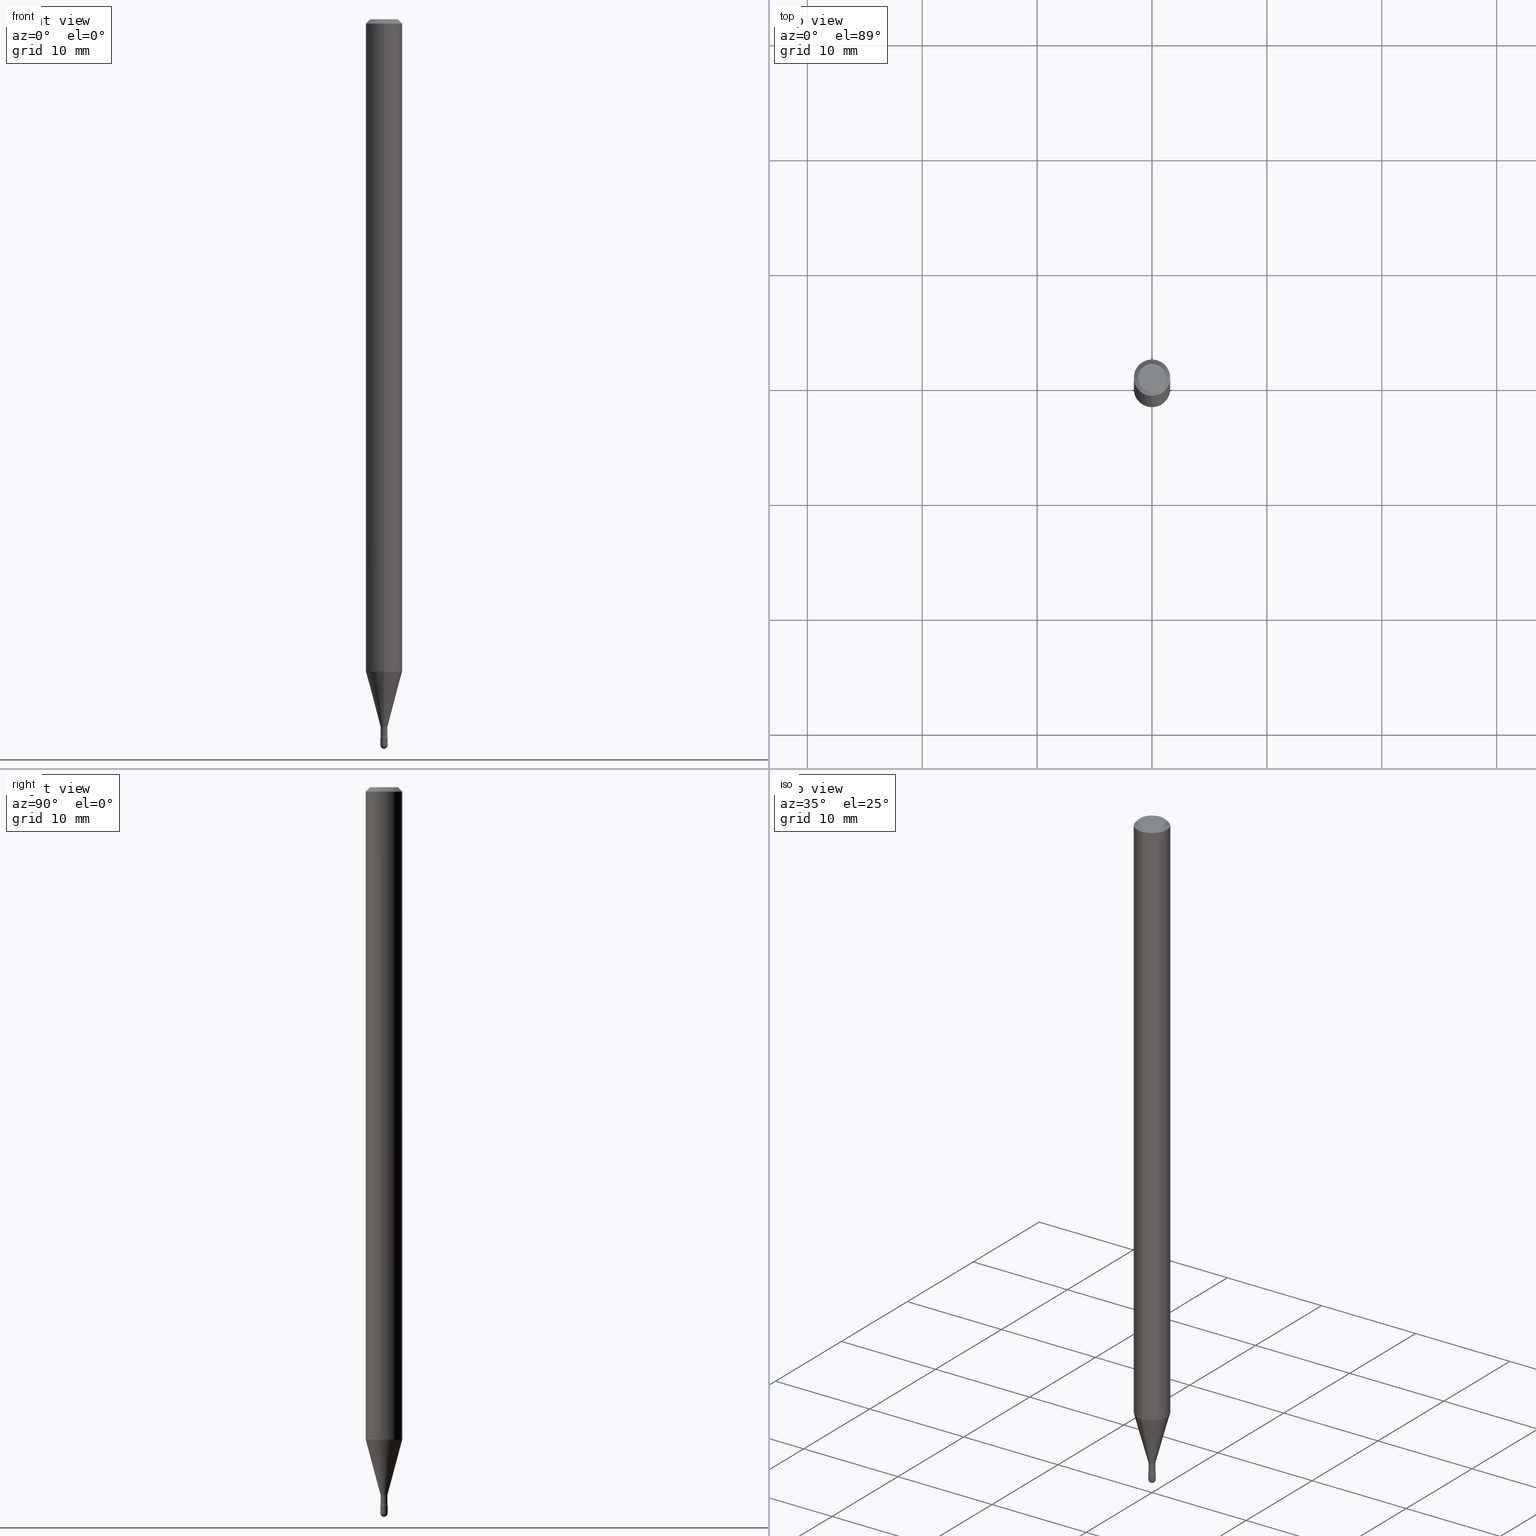
[diagram: canonical four-view strip — front | top / right | iso, engineering-drawing reading convention]
A machine part, canonical four-view strip (front | top / right | iso — engineering-drawing reading convention). The complete STEP part file that produces these views, byte-faithful:
ISO-10303-21;
HEADER;
FILE_DESCRIPTION (( 'STEP AP203' ),
    '1' );
FILE_NAME ('09431.STEP',
    '2024-04-09T23:04:55',
    ( '' ),
    ( '' ),
    'SwSTEP 2.0',
    'SolidWorks 2023',
    '' );
FILE_SCHEMA (( 'CONFIG_CONTROL_DESIGN' ));
ENDSEC;

DATA;
#1 = CARTESIAN_POINT ( 'NONE',  ( 0.01250000000000000243, -8.727830476773153796E-15, -2.487500000000000266 ) ) ;
#2 = EDGE_CURVE ( 'NONE', #465, #327, #538, .T. ) ;
#3 = FACE_OUTER_BOUND ( 'NONE', #397, .T. ) ;
#4 = CARTESIAN_POINT ( 'NONE',  ( 8.881784197007265416E-17, 0.01249999999999139820, -2.462000000000000188 ) ) ;
#5 = CARTESIAN_POINT ( 'NONE',  ( 3.316907271900976096E-16, 0.04749999999999999362, 3.181896969910188134E-17 ) ) ;
#6 = ADVANCED_FACE ( 'NONE', ( #516 ), #338, .T. ) ;
#7 = AXIS2_PLACEMENT_3D ( 'NONE', #86, #379, #178 ) ;
#8 = CONICAL_SURFACE ( 'NONE', #383, 0.01226111260566397493, 0.2617993877991502960 ) ;
#9 = DATE_TIME_ROLE ( 'classification_date' ) ;
#10 = EDGE_CURVE ( 'NONE', #51, #109, #164, .T. ) ;
#11 = CARTESIAN_POINT ( 'NONE',  ( 3.668253922535558756E-31, -5.237149383993110783E-17, -0.01500000000000008271 ) ) ;
#12 = ORIENTED_EDGE ( 'NONE', *, *, #69, .T. ) ;
#13 = SHAPE_DEFINITION_REPRESENTATION ( #215, #129 ) ;
#14 = CARTESIAN_POINT ( 'NONE',  ( 5.935173189339319976E-29, -8.473619675421892163E-15, -2.426974787463811012 ) ) ;
#15 = ORIENTED_EDGE ( 'NONE', *, *, #312, .T. ) ;
#16 = DIRECTION ( 'NONE',  ( -6.982962677686265922E-15, -1.000000000000000000, 0.000000000000000000 ) ) ;
#17 = CC_DESIGN_PERSON_AND_ORGANIZATION_ASSIGNMENT ( #443, #149, ( #456 ) ) ;
#18 = APPROVAL_PERSON_ORGANIZATION ( #274, #541, #403 ) ;
#19 = EDGE_LOOP ( 'NONE', ( #394, #15 ) ) ;
#20 = APPROVAL_DATE_TIME ( #395, #346 ) ;
#21 = CONICAL_SURFACE ( 'NONE', #299, 0.06250000000000000000, 0.7853981633974483900 ) ;
#22 = CIRCLE ( 'NONE', #37, 0.01174999999999999829 ) ;
#23 = DIRECTION ( 'NONE',  ( -2.445502615023692233E-29, 3.491432922662054397E-15, 1.000000000000000000 ) ) ;
#24 = EDGE_LOOP ( 'NONE', ( #251, #427, #552, #348 ) ) ;
#25 = PERSON_AND_ORGANIZATION ( #47, #372 ) ;
#26 = VERTEX_POINT ( 'NONE', #474 ) ;
#27 = DIRECTION ( 'NONE',  ( -2.445502615023692233E-29, 3.491432922662054397E-15, 1.000000000000000000 ) ) ;
#28 = ORIENTED_EDGE ( 'NONE', *, *, #422, .T. ) ;
#29 = ORIENTED_EDGE ( 'NONE', *, *, #123, .F. ) ;
#30 = LINE ( 'NONE', #366, #392 ) ;
#31 = ADVANCED_FACE ( 'NONE', ( #418 ), #124, .F. ) ;
#32 = TOROIDAL_SURFACE ( 'NONE', #546, 0.02675000000000003764, 0.01499999999999998904 ) ;
#33 = CARTESIAN_POINT ( 'NONE',  ( 6.009373318986404727E-29, -8.579554861883802468E-15, -2.457316251501201254 ) ) ;
#34 = VERTEX_POINT ( 'NONE', #373 ) ;
#35 = CARTESIAN_POINT ( 'NONE',  ( 5.935091136140551956E-29, -8.473737180272706087E-15, -2.426974787463811012 ) ) ;
#36 = AXIS2_PLACEMENT_3D ( 'NONE', #221, #135, #293 ) ;
#37 = AXIS2_PLACEMENT_3D ( 'NONE', #302, #192, #228 ) ;
#38 = EDGE_LOOP ( 'NONE', ( #409, #138, #566, #500 ) ) ;
#39 = ORIENTED_EDGE ( 'NONE', *, *, #133, .T. ) ;
#40 = FACE_OUTER_BOUND ( 'NONE', #208, .T. ) ;
#41 = ORIENTED_EDGE ( 'NONE', *, *, #405, .F. ) ;
#42 = DIRECTION ( 'NONE',  ( 7.105427357600997914E-15, 1.000000000000000000, 0.000000000000000000 ) ) ;
#43 = CARTESIAN_POINT ( 'NONE',  ( 2.023798705129042807E-45, -2.888905950267218175E-31, -8.274933184014726053E-17 ) ) ;
#44 = VERTEX_POINT ( 'NONE', #559 ) ;
#45 = ORIENTED_EDGE ( 'NONE', *, *, #399, .T. ) ;
#46 = CARTESIAN_POINT ( 'NONE',  ( 6.020827438188330788E-29, -8.595907855593977627E-15, -2.462000000000000188 ) ) ;
#47 = PERSON ( 'UNSPECIFIED', 'UNSPECIFIED', 'UNSPECIFIED', ('UNSPECIFIED'), ('UNSPECIFIED'), ('UNSPECIFIED') ) ;
#48 = DIRECTION ( 'NONE',  ( -6.982962677686265922E-15, -1.000000000000000000, 3.491432922662054792E-15 ) ) ;
#49 = CARTESIAN_POINT ( 'NONE',  ( 5.925679049565077120E-29, -8.460064935395648015E-15, -2.423092501787273090 ) ) ;
#50 = AXIS2_PLACEMENT_3D ( 'NONE', #101, #528, #305 ) ;
#51 = VERTEX_POINT ( 'NONE', #130 ) ;
#52 = LINE ( 'NONE', #385, #106 ) ;
#53 = DIRECTION ( 'NONE',  ( -2.438088387897960049E-29, 3.491481338843145188E-15, 1.000000000000000000 ) ) ;
#54 = DIRECTION ( 'NONE',  ( -6.982962677686265133E-15, -1.000000000000000000, 3.491432922662051636E-15 ) ) ;
#55 = DIRECTION ( 'NONE',  ( -2.445468806185136877E-29, 3.491481338843145188E-15, 1.000000000000000000 ) ) ;
#56 = EDGE_CURVE ( 'NONE', #113, #253, #117, .T. ) ;
#57 = APPROVAL_ROLE ( '' ) ;
#58 = CARTESIAN_POINT ( 'NONE',  ( -4.364351673553912750E-16, -0.06250000000000005551, -0.01499999999999986587 ) ) ;
#59 = LOCAL_TIME ( 19, 4, 55.00000000000000000, #446 ) ;
#60 = ORIENTED_EDGE ( 'NONE', *, *, #289, .F. ) ;
#61 = CIRCLE ( 'NONE', #273, 0.01226111260566397493 ) ;
#62 = COORDINATED_UNIVERSAL_TIME_OFFSET ( 5, 0, .BEHIND. ) ;
#63 = ORIENTED_EDGE ( 'NONE', *, *, #100, .F. ) ;
#64 = CARTESIAN_POINT ( 'NONE',  ( -0.01250000000000000243, 8.881784197001254049E-17, -6.148668862818633278E-31 ) ) ;
#65 = ADVANCED_FACE ( 'NONE', ( #463 ), #298, .T. ) ;
#66 = PERSON_AND_ORGANIZATION_ROLE ( 'classification_officer' ) ;
#67 = VERTEX_POINT ( 'NONE', #416 ) ;
#68 = ORIENTED_EDGE ( 'NONE', *, *, #515, .T. ) ;
#69 = EDGE_CURVE ( 'NONE', #34, #533, #468, .T. ) ;
#70 = FACE_OUTER_BOUND ( 'NONE', #87, .T. ) ;
#71 = COORDINATED_UNIVERSAL_TIME_OFFSET ( 5, 0, .BEHIND. ) ;
#72 = CARTESIAN_POINT ( 'NONE',  ( 6.083103655385528181E-29, -8.685059830372324987E-15, -2.487500000000000266 ) ) ;
#73 = LOCAL_TIME ( 19, 4, 55.00000000000000000, #71 ) ;
#74 = CALENDAR_DATE ( 2024, 9, 4 ) ;
#75 = AXIS2_PLACEMENT_3D ( 'NONE', #11, #349, #105 ) ;
#76 = CARTESIAN_POINT ( 'NONE',  ( 3.668253922535558756E-31, -5.237149383993110783E-17, -0.01500000000000008271 ) ) ;
#77 = ORIENTED_EDGE ( 'NONE', *, *, #155, .T. ) ;
#78 = CARTESIAN_POINT ( 'NONE',  ( -4.364351673553369422E-16, -0.06250000000000779932, -2.235598421515879952 ) ) ;
#79 = ADVANCED_FACE ( 'NONE', ( #345 ), #21, .T. ) ;
#80 = LINE ( 'NONE', #276, #362 ) ;
#81 = ORIENTED_EDGE ( 'NONE', *, *, #550, .F. ) ;
#82 = SECURITY_CLASSIFICATION ( '', '', #401 ) ;
#83 = AXIS2_PLACEMENT_3D ( 'NONE', #72, #503, #166 ) ;
#84 = EDGE_CURVE ( 'NONE', #533, #44, #264, .T. ) ;
#85 = EDGE_CURVE ( 'NONE', #26, #44, #308, .T. ) ;
#86 = CARTESIAN_POINT ( 'NONE',  ( 0.000000000000000000, 0.000000000000000000, 0.000000000000000000 ) ) ;
#87 = EDGE_LOOP ( 'NONE', ( #407, #41, #452, #376 ) ) ;
#88 = CARTESIAN_POINT ( 'NONE',  ( 6.083103655385528181E-29, -8.685059830372324987E-15, -2.487500000000000266 ) ) ;
#89 = CIRCLE ( 'NONE', #75, 0.06250000000000000000 ) ;
#90 = DIRECTION ( 'NONE',  ( -2.445502615023692233E-29, 3.491432922662054397E-15, 1.000000000000000000 ) ) ;
#91 = SPHERICAL_SURFACE ( 'NONE', #563, 0.01249999999999996947 ) ;
#92 = DIRECTION ( 'NONE',  ( 2.445502615023692233E-29, -3.491432922662054397E-15, -1.000000000000000000 ) ) ;
#93 = EDGE_CURVE ( 'NONE', #44, #533, #344, .T. ) ;
#94 = FACE_OUTER_BOUND ( 'NONE', #318, .T. ) ;
#95 = ORIENTED_EDGE ( 'NONE', *, *, #550, .T. ) ;
#96 = DIRECTION ( 'NONE',  ( -6.982962677686267499E-15, -1.000000000000000000, 0.000000000000000000 ) ) ;
#97 = DIRECTION ( 'NONE',  ( -2.445502615023692233E-29, 3.491432922662054397E-15, 1.000000000000000000 ) ) ;
#98 = EDGE_CURVE ( 'NONE', #423, #508, #22, .T. ) ;
#99 = FACE_OUTER_BOUND ( 'NONE', #339, .T. ) ;
#100 = EDGE_CURVE ( 'NONE', #212, #175, #89, .T. ) ;
#101 = CARTESIAN_POINT ( 'NONE',  ( 6.083103655385528181E-29, -8.685059830372324987E-15, -2.487500000000000266 ) ) ;
#102 = LINE ( 'NONE', #386, #301 ) ;
#103 = APPROVAL_ROLE ( '' ) ;
#104 = CIRCLE ( 'NONE', #286, 0.01175000000000004860 ) ;
#105 = DIRECTION ( 'NONE',  ( -6.982962677686265922E-15, -1.000000000000000000, 3.483106191921935554E-15 ) ) ;
#106 = VECTOR ( 'NONE', #382, 39.37007874015748143 ) ;
#107 = CIRCLE ( 'NONE', #233, 0.06250000000000000000 ) ;
#108 = APPROVAL_STATUS ( 'not_yet_approved' ) ;
#109 = VERTEX_POINT ( 'NONE', #1 ) ;
#110 = ORIENTED_EDGE ( 'NONE', *, *, #155, .F. ) ;
#111 = DIRECTION ( 'NONE',  ( -6.982962677686265922E-15, -1.000000000000000000, 3.483106191921935554E-15 ) ) ;
#112 = APPROVAL_DATE_TIME ( #496, #187 ) ;
#113 = VERTEX_POINT ( 'NONE', #230 ) ;
#114 = ADVANCED_FACE ( 'NONE', ( #525 ), #353, .T. ) ;
#115 = LINE ( 'NONE', #450, #202 ) ;
#116 = LINE ( 'NONE', #330, #444 ) ;
#117 = CIRCLE ( 'NONE', #431, 0.01226111260566397493 ) ;
#118 = AXIS2_PLACEMENT_3D ( 'NONE', #549, #404, #160 ) ;
#119 = ORIENTED_EDGE ( 'NONE', *, *, #312, .F. ) ;
#120 = CARTESIAN_POINT ( 'NONE',  ( 2.023798705129042807E-45, -2.888905950267218175E-31, -8.274933184014726053E-17 ) ) ;
#121 = EDGE_CURVE ( 'NONE', #109, #167, #565, .T. ) ;
#122 = CARTESIAN_POINT ( 'NONE',  ( 6.020744200827806517E-29, -8.596027056231825938E-15, -2.462000000000000188 ) ) ;
#123 = EDGE_CURVE ( 'NONE', #314, #398, #494, .T. ) ;
#124 = TOROIDAL_SURFACE ( 'NONE', #331, 0.02674999999999999947, 0.01500000000000002720 ) ;
#125 = CIRCLE ( 'NONE', #539, 0.01250000000000000069 ) ;
#126 = DIRECTION ( 'NONE',  ( -2.445468806185136597E-29, 3.491481338843145583E-15, 1.000000000000000000 ) ) ;
#127 = DIRECTION ( 'NONE',  ( 6.982962677686265922E-15, 1.000000000000000000, -3.483106191921935554E-15 ) ) ;
#128 = DIRECTION ( 'NONE',  ( -6.982962677686265922E-15, -1.000000000000000000, 3.491432922662053608E-15 ) ) ;
#129 = ADVANCED_BREP_SHAPE_REPRESENTATION ( '09431', ( #412, #238, #153 ), #365 ) ;
#130 = CARTESIAN_POINT ( 'NONE',  ( -8.881784196995158866E-17, -0.01250000000000867084, -2.487500000000000266 ) ) ;
#131 = UNCERTAINTY_MEASURE_WITH_UNIT (LENGTH_MEASURE( 1.000000000000000082E-05 ), #188, 'distance_accuracy_value', 'NONE');
#132 = CARTESIAN_POINT ( 'NONE',  ( -0.01250000000000000243, -8.551725601332063255E-15, -2.487500000000000266 ) ) ;
#133 = EDGE_CURVE ( 'NONE', #327, #175, #102, .T. ) ;
#134 = VECTOR ( 'NONE', #55, 39.37007874015748143 ) ;
#135 = DIRECTION ( 'NONE',  ( -2.445468806185136597E-29, 3.491481338843145583E-15, 1.000000000000000000 ) ) ;
#136 = EDGE_CURVE ( 'NONE', #34, #423, #436, .T. ) ;
#137 = DIRECTION ( 'NONE',  ( 1.000000000000000000, -6.982962677686292743E-15, 0.000000000000000000 ) ) ;
#138 = ORIENTED_EDGE ( 'NONE', *, *, #534, .T. ) ;
#139 = DIRECTION ( 'NONE',  ( -6.982962677686265133E-15, -1.000000000000000000, 0.000000000000000000 ) ) ;
#140 =( LENGTH_UNIT ( ) NAMED_UNIT ( * ) SI_UNIT ( $, .METRE. ) );
#141 = DIRECTION ( 'NONE',  ( 6.982962677686266711E-15, 1.000000000000000000, 0.000000000000000000 ) ) ;
#142 = EDGE_CURVE ( 'NONE', #508, #423, #368, .T. ) ;
#143 = VECTOR ( 'NONE', #229, 39.37007874015748143 ) ;
#144 = CARTESIAN_POINT ( 'NONE',  ( 6.083103655385528181E-29, -8.685059830372324987E-15, -2.487500000000000266 ) ) ;
#145 = AXIS2_PLACEMENT_3D ( 'NONE', #295, #90, #342 ) ;
#146 = DIRECTION ( 'NONE',  ( 0.000000000000000000, 0.000000000000000000, 1.000000000000000000 ) ) ;
#147 = CARTESIAN_POINT ( 'NONE',  ( 8.348877145181191995E-17, 0.01175000000000002258, 4.370490620499668770E-16 ) ) ;
#148 = ORIENTED_EDGE ( 'NONE', *, *, #177, .F. ) ;
#149 = PERSON_AND_ORGANIZATION_ROLE ( 'creator' ) ;
#150 = DIRECTION ( 'NONE',  ( -2.445502615023692233E-29, 3.491432922662054397E-15, 1.000000000000000000 ) ) ;
#151 = ORIENTED_EDGE ( 'NONE', *, *, #121, .T. ) ;
#152 = COORDINATED_UNIVERSAL_TIME_OFFSET ( 5, 0, .BEHIND. ) ;
#153 = AXIS2_PLACEMENT_3D ( 'NONE', #157, #146, #267 ) ;
#154 = DIRECTION ( 'NONE',  ( 1.000000000000000000, -6.982962677686292743E-15, 0.000000000000000000 ) ) ;
#155 = EDGE_CURVE ( 'NONE', #477, #51, #250, .T. ) ;
#156 = CONICAL_SURFACE ( 'NONE', #419, 0.06250000000000000000, 0.7853981633974483900 ) ;
#157 = CARTESIAN_POINT ( 'NONE',  ( 0.000000000000000000, 0.000000000000000000, 0.000000000000000000 ) ) ;
#158 = ORIENTED_EDGE ( 'NONE', *, *, #515, .F. ) ;
#159 = CARTESIAN_POINT ( 'NONE',  ( -8.561889171220087802E-17, -0.01226111260567243517, -2.423092501787273090 ) ) ;
#160 = DIRECTION ( 'NONE',  ( -6.982962677686266711E-15, -1.000000000000000000, 3.491432922662054003E-15 ) ) ;
#161 = ADVANCED_FACE ( 'NONE', ( #322 ), #495, .F. ) ;
#162 = DIRECTION ( 'NONE',  ( 6.982962677686265922E-15, 1.000000000000000000, -3.483106191921935554E-15 ) ) ;
#163 = AXIS2_PLACEMENT_3D ( 'NONE', #524, #433, #227 ) ;
#164 = CIRCLE ( 'NONE', #36, 0.01250000000000000243 ) ;
#165 = DIRECTION ( 'NONE',  ( -2.445502615023692233E-29, 3.491432922662054397E-15, 1.000000000000000000 ) ) ;
#166 = DIRECTION ( 'NONE',  ( 1.000000000000000000, -6.982962677686292743E-15, 0.000000000000000000 ) ) ;
#167 = VERTEX_POINT ( 'NONE', #390 ) ;
#168 = AXIS2_PLACEMENT_3D ( 'NONE', #297, #420, #425 ) ;
#169 = EDGE_LOOP ( 'NONE', ( #172, #77, #60, #378 ) ) ;
#170 = APPLICATION_CONTEXT ( 'configuration controlled 3d designs of mechanical parts and assemblies' ) ;
#171 = CARTESIAN_POINT ( 'NONE',  ( 3.668253922535558756E-31, -5.237149383993110783E-17, -0.01500000000000008271 ) ) ;
#172 = ORIENTED_EDGE ( 'NONE', *, *, #406, .F. ) ;
#173 = CARTESIAN_POINT ( 'NONE',  ( 5.467161785959923707E-29, -7.805441930731864648E-15, -2.235598421515879952 ) ) ;
#174 = CARTESIAN_POINT ( 'NONE',  ( -8.204981146275426418E-17, -0.01175000000000847242, -2.426974787463811012 ) ) ;
#175 = VERTEX_POINT ( 'NONE', #58 ) ;
#176 = VERTEX_POINT ( 'NONE', #384 ) ;
#177 = EDGE_CURVE ( 'NONE', #109, #398, #268, .T. ) ;
#178 = DIRECTION ( 'NONE',  ( 1.000000000000000000, -6.982962677686267499E-15, 4.876176775795936353E-29 ) ) ;
#179 = CIRCLE ( 'NONE', #83, 0.01250000000000000243 ) ;
#180 =( NAMED_UNIT ( * ) PLANE_ANGLE_UNIT ( ) SI_UNIT ( $, .RADIAN. ) );
#181 = ORIENTED_EDGE ( 'NONE', *, *, #289, .T. ) ;
#182 = AXIS2_PLACEMENT_3D ( 'NONE', #466, #220, #128 ) ;
#183 = DIRECTION ( 'NONE',  ( -6.982962677686265922E-15, -1.000000000000000000, 0.000000000000000000 ) ) ;
#184 = APPLICATION_CONTEXT ( 'configuration controlled 3d designs of mechanical parts and assemblies' ) ;
#185 = CYLINDRICAL_SURFACE ( 'NONE', #290, 0.01175000000000002258 ) ;
#186 = DIRECTION ( 'NONE',  ( -6.982962677686265922E-15, -1.000000000000000000, 0.000000000000000000 ) ) ;
#187 = APPROVAL ( #485, 'UNSPECIFIED' ) ;
#188 =( CONVERSION_BASED_UNIT ( 'INCH', #517 ) LENGTH_UNIT ( ) NAMED_UNIT ( #236 ) );
#189 = DIRECTION ( 'NONE',  ( -2.445502615023692233E-29, 3.491432922662054397E-15, 1.000000000000000000 ) ) ;
#190 = ORIENTED_EDGE ( 'NONE', *, *, #235, .F. ) ;
#191 = ORIENTED_EDGE ( 'NONE', *, *, #10, .F. ) ;
#192 = DIRECTION ( 'NONE',  ( -2.445502615023692233E-29, 3.491432922662054397E-15, 1.000000000000000000 ) ) ;
#193 = AXIS2_PLACEMENT_3D ( 'NONE', #441, #189, #196 ) ;
#194 = ORIENTED_EDGE ( 'NONE', *, *, #370, .T. ) ;
#195 = PERSON_AND_ORGANIZATION ( #47, #372 ) ;
#196 = DIRECTION ( 'NONE',  ( -6.982962677686266711E-15, -1.000000000000000000, 3.491432922662054003E-15 ) ) ;
#197 = ORIENTED_EDGE ( 'NONE', *, *, #98, .F. ) ;
#198 = ADVANCED_FACE ( 'NONE', ( #3 ), #410, .F. ) ;
#199 = DIRECTION ( 'NONE',  ( -2.445468806185136877E-29, 3.491481338843145188E-15, 1.000000000000000000 ) ) ;
#200 = CARTESIAN_POINT ( 'NONE',  ( 6.083103655385528181E-29, -8.685059830372324987E-15, -2.487500000000000266 ) ) ;
#201 = ORIENTED_EDGE ( 'NONE', *, *, #254, .T. ) ;
#202 = VECTOR ( 'NONE', #402, 39.37007874015748143 ) ;
#203 = DIRECTION ( 'NONE',  ( -6.982962677686266711E-15, -1.000000000000000000, 3.491432922662054792E-15 ) ) ;
#204 = ADVANCED_FACE ( 'NONE', ( #439 ), #8, .T. ) ;
#205 = ORIENTED_EDGE ( 'NONE', *, *, #93, .F. ) ;
#206 = DIRECTION ( 'NONE',  ( -2.445502615023692233E-29, 3.491432922662054397E-15, 1.000000000000000000 ) ) ;
#207 = CARTESIAN_POINT ( 'NONE',  ( -1.169113584055446105E-44, 1.669184350826100908E-30, 4.780733988912460139E-16 ) ) ;
#208 = EDGE_LOOP ( 'NONE', ( #205, #333 ) ) ;
#209 = AXIS2_PLACEMENT_3D ( 'NONE', #46, #522, #139 ) ;
#210 = DIRECTION ( 'NONE',  ( -2.445502615023692233E-29, 3.491432922662054397E-15, 1.000000000000000000 ) ) ;
#211 = ADVANCED_FACE ( 'NONE', ( #488 ), #530, .T. ) ;
#212 = VERTEX_POINT ( 'NONE', #445 ) ;
#213 = DIRECTION ( 'NONE',  ( -6.982962677686266711E-15, -1.000000000000000000, 3.491432922662054003E-15 ) ) ;
#214 = LOCAL_TIME ( 19, 4, 55.00000000000000000, #278 ) ;
#215 = PRODUCT_DEFINITION_SHAPE ( 'NONE', 'NONE',  #456 ) ;
#216 = DIRECTION ( 'NONE',  ( -2.445502615023692233E-29, 3.491432922662054397E-15, 1.000000000000000000 ) ) ;
#217 = ADVANCED_FACE ( 'NONE', ( #237 ), #396, .T. ) ;
#218 = CARTESIAN_POINT ( 'NONE',  ( 6.083103655385528181E-29, -8.685059830372324987E-15, -2.487500000000000266 ) ) ;
#219 = ORIENTED_EDGE ( 'NONE', *, *, #277, .T. ) ;
#220 = DIRECTION ( 'NONE',  ( -2.445502615023692233E-29, 3.491432922662054397E-15, 1.000000000000000000 ) ) ;
#221 = CARTESIAN_POINT ( 'NONE',  ( 6.083103655385528181E-29, -8.685059830372324987E-15, -2.487500000000000266 ) ) ;
#222 = CARTESIAN_POINT ( 'NONE',  ( 4.440892098501170476E-16, 0.06249999999999218681, -2.235598421515880396 ) ) ;
#223 = CLOSED_SHELL ( 'NONE', ( #31, #364, #198, #324, #303, #211, #204, #462, #79, #161, #424, #280, #432, #269 ) ) ;
#224 = AXIS2_PLACEMENT_3D ( 'NONE', #207, #206, #363 ) ;
#225 = CC_DESIGN_PERSON_AND_ORGANIZATION_ASSIGNMENT ( #195, #531, ( #306 ) ) ;
#226 = DIRECTION ( 'NONE',  ( -7.105427357601001070E-15, -1.000000000000000000, 0.000000000000000000 ) ) ;
#227 = DIRECTION ( 'NONE',  ( 7.105427357601000281E-15, 1.000000000000000000, 0.000000000000000000 ) ) ;
#228 = DIRECTION ( 'NONE',  ( -6.982962677686266711E-15, -1.000000000000000000, 0.000000000000000000 ) ) ;
#229 = DIRECTION ( 'NONE',  ( -1.807323732225330534E-15, -0.2588190451025182415, 0.9659258262890689783 ) ) ;
#230 = CARTESIAN_POINT ( 'NONE',  ( 2.656048273965440333E-16, 0.01226111260565551642, -2.423092501787273090 ) ) ;
#231 = CALENDAR_DATE ( 2024, 9, 4 ) ;
#232 = CARTESIAN_POINT ( 'NONE',  ( 0.01250000000000000243, -8.728703347107835853E-17, 6.095220969744921493E-31 ) ) ;
#233 = AXIS2_PLACEMENT_3D ( 'NONE', #288, #411, #111 ) ;
#234 = CALENDAR_DATE ( 2024, 9, 4 ) ;
#235 = EDGE_CURVE ( 'NONE', #438, #314, #266, .T. ) ;
#236 = DIMENSIONAL_EXPONENTS ( 1.000000000000000000, 0.000000000000000000, 0.000000000000000000, 0.000000000000000000, 0.000000000000000000, 0.000000000000000000, 0.000000000000000000 ) ;
#237 = FACE_OUTER_BOUND ( 'NONE', #169, .T. ) ;
#238 = MANIFOLD_SOLID_BREP ( 'Body-Move/Copy2[2]', #223 ) ;
#239 = ORIENTED_EDGE ( 'NONE', *, *, #235, .T. ) ;
#240 = CARTESIAN_POINT ( 'NONE',  ( 6.009290239977977822E-29, -8.579673835752435391E-15, -2.457316251501201698 ) ) ;
#241 = APPROVAL_DATE_TIME ( #351, #541 ) ;
#242 = AXIS2_PLACEMENT_3D ( 'NONE', #218, #259, #137 ) ;
#243 = DIRECTION ( 'NONE',  ( -2.445502615023692233E-29, 3.491432922662054792E-15, 1.000000000000000000 ) ) ;
#244 = AXIS2_PLACEMENT_3D ( 'NONE', #455, #27, #283 ) ;
#245 = CALENDAR_DATE ( 2024, 9, 4 ) ;
#246 = FACE_OUTER_BOUND ( 'NONE', #367, .T. ) ;
#247 = DIRECTION ( 'NONE',  ( -2.445502615023692233E-29, 3.491432922662054397E-15, 1.000000000000000000 ) ) ;
#248 = DIRECTION ( 'NONE',  ( -2.445468806185136597E-29, 3.491481338843145583E-15, 1.000000000000000000 ) ) ;
#249 = CIRCLE ( 'NONE', #163, 0.01500000000000002720 ) ;
#250 = CIRCLE ( 'NONE', #343, 0.01249999999999996947 ) ;
#251 = ORIENTED_EDGE ( 'NONE', *, *, #69, .F. ) ;
#252 = ORIENTED_EDGE ( 'NONE', *, *, #370, .F. ) ;
#253 = VERTEX_POINT ( 'NONE', #159 ) ;
#254 = EDGE_CURVE ( 'NONE', #113, #465, #116, .T. ) ;
#255 = VECTOR ( 'NONE', #430, 39.37007874015748143 ) ;
#256 = ORIENTED_EDGE ( 'NONE', *, *, #447, .F. ) ;
#257 = DIRECTION ( 'NONE',  ( -2.445502615023692233E-29, 3.491432922662054397E-15, 1.000000000000000000 ) ) ;
#258 = DIRECTION ( 'NONE',  ( -1.000000000000000000, 6.982962677686265922E-15, -4.883557194083112340E-29 ) ) ;
#259 = DIRECTION ( 'NONE',  ( -2.445468806185136597E-29, 3.491481338843145583E-15, 1.000000000000000000 ) ) ;
#260 = DIRECTION ( 'NONE',  ( 1.000000000000000000, -6.982962677686294321E-15, 0.000000000000000000 ) ) ;
#261 = ORIENTED_EDGE ( 'NONE', *, *, #100, .T. ) ;
#262 = AXIS2_PLACEMENT_3D ( 'NONE', #558, #476, #96 ) ;
#263 = DIRECTION ( 'NONE',  ( -2.445502615023692233E-29, 3.491432922662054397E-15, 1.000000000000000000 ) ) ;
#264 = CIRCLE ( 'NONE', #145, 0.01250000000000000069 ) ;
#265 = DIRECTION ( 'NONE',  ( -2.445502615023692233E-29, 3.491432922662054792E-15, 1.000000000000000000 ) ) ;
#266 = LINE ( 'NONE', #64, #134 ) ;
#267 = DIRECTION ( 'NONE',  ( 1.000000000000000000, 0.000000000000000000, 0.000000000000000000 ) ) ;
#268 = LINE ( 'NONE', #232, #454 ) ;
#269 = ADVANCED_FACE ( 'NONE', ( #70 ), #323, .F. ) ;
#270 = ORIENTED_EDGE ( 'NONE', *, *, #336, .F. ) ;
#271 = DATE_AND_TIME ( #74, #214 ) ;
#272 = DIRECTION ( 'NONE',  ( -2.445502615023692233E-29, 3.491432922662054397E-15, 1.000000000000000000 ) ) ;
#273 = AXIS2_PLACEMENT_3D ( 'NONE', #448, #498, #16 ) ;
#274 = PERSON_AND_ORGANIZATION ( #47, #372 ) ;
#275 = ORIENTED_EDGE ( 'NONE', *, *, #136, .T. ) ;
#276 = CARTESIAN_POINT ( 'NONE',  ( -8.204981146281377387E-17, -0.01175000000000002258, 5.190977357325252001E-16 ) ) ;
#277 = EDGE_CURVE ( 'NONE', #34, #26, #104, .T. ) ;
#278 = COORDINATED_UNIVERSAL_TIME_OFFSET ( 5, 0, .BEHIND. ) ;
#279 = ORIENTED_EDGE ( 'NONE', *, *, #123, .T. ) ;
#280 = ADVANCED_FACE ( 'NONE', ( #507 ), #32, .F. ) ;
#281 = DIRECTION ( 'NONE',  ( -6.982962677686265133E-15, -1.000000000000000000, 0.000000000000000000 ) ) ;
#282 = APPLICATION_PROTOCOL_DEFINITION ( 'international standard', 'config_control_design', 1994, #184 ) ;
#283 = DIRECTION ( 'NONE',  ( -6.982962677686265922E-15, -1.000000000000000000, 3.491432922662053608E-15 ) ) ;
#284 = ORIENTED_EDGE ( 'NONE', *, *, #405, .T. ) ;
#285 = CLOSED_SHELL ( 'NONE', ( #6, #217, #114, #469, #65 ) ) ;
#286 = AXIS2_PLACEMENT_3D ( 'NONE', #547, #247, #335 ) ;
#287 = CARTESIAN_POINT ( 'NONE',  ( -0.01250000000000000069, -8.551725601332063255E-15, -2.462000000000000188 ) ) ;
#288 = CARTESIAN_POINT ( 'NONE',  ( 3.668253922535558756E-31, -5.237149383993110783E-17, -0.01500000000000008271 ) ) ;
#289 = EDGE_CURVE ( 'NONE', #438, #51, #179, .T. ) ;
#290 = AXIS2_PLACEMENT_3D ( 'NONE', #527, #471, #54 ) ;
#291 = AXIS2_PLACEMENT_3D ( 'NONE', #173, #512, #341 ) ;
#292 = AXIS2_PLACEMENT_3D ( 'NONE', #144, #350, #154 ) ;
#293 = DIRECTION ( 'NONE',  ( 1.000000000000000000, -6.982962677686292743E-15, 0.000000000000000000 ) ) ;
#294 = PRODUCT_RELATED_PRODUCT_CATEGORY ( 'detail', '', ( #296 ) ) ;
#295 = CARTESIAN_POINT ( 'NONE',  ( 6.020827438188330788E-29, -8.595907855593977627E-15, -2.462000000000000188 ) ) ;
#296 = PRODUCT ( '09431', '09431', '', ( #357 ) ) ;
#297 = CARTESIAN_POINT ( 'NONE',  ( 5.467161785959923707E-29, -7.805441930731864648E-15, -2.235598421515879952 ) ) ;
#298 = CYLINDRICAL_SURFACE ( 'NONE', #7, 0.01250000000000000243 ) ;
#299 = AXIS2_PLACEMENT_3D ( 'NONE', #171, #92, #127 ) ;
#300 = DIRECTION ( 'NONE',  ( -2.445502615023691672E-29, 3.491432922662054792E-15, 1.000000000000000000 ) ) ;
#301 = VECTOR ( 'NONE', #265, 39.37007874015748143 ) ;
#302 = CARTESIAN_POINT ( 'NONE',  ( 5.935173189339319976E-29, -8.473619675421892163E-15, -2.426974787463811012 ) ) ;
#303 = ADVANCED_FACE ( 'NONE', ( #457 ), #328, .T. ) ;
#304 = CYLINDRICAL_SURFACE ( 'NONE', #182, 0.06250000000000000000 ) ;
#305 = DIRECTION ( 'NONE',  ( 6.982962677686266711E-15, 1.000000000000000000, 0.000000000000000000 ) ) ;
#306 = PRODUCT_DEFINITION_FORMATION_WITH_SPECIFIED_SOURCE ( 'ANY', '', #296, .NOT_KNOWN. ) ;
#307 =( NAMED_UNIT ( * ) SI_UNIT ( $, .STERADIAN. ) SOLID_ANGLE_UNIT ( ) );
#308 = CIRCLE ( 'NONE', #489, 0.01499999999999999424 ) ;
#309 = CARTESIAN_POINT ( 'NONE',  ( 6.020744200827806517E-29, -8.596027056231825938E-15, -2.462000000000000188 ) ) ;
#310 = ORIENTED_EDGE ( 'NONE', *, *, #254, .F. ) ;
#311 = APPLICATION_PROTOCOL_DEFINITION ( 'international standard', 'config_control_design', 1994, #170 ) ;
#312 = EDGE_CURVE ( 'NONE', #176, #67, #554, .T. ) ;
#313 = CARTESIAN_POINT ( 'NONE',  ( 6.083103655385528181E-29, -8.685059830372324987E-15, -2.487500000000000266 ) ) ;
#314 = VERTEX_POINT ( 'NONE', #287 ) ;
#315 = EDGE_LOOP ( 'NONE', ( #460, #256, #429, #261 ) ) ;
#316 = ORIENTED_EDGE ( 'NONE', *, *, #501, .T. ) ;
#317 = DIRECTION ( 'NONE',  ( -6.982962677686265922E-15, -1.000000000000000000, 0.000000000000000000 ) ) ;
#318 = EDGE_LOOP ( 'NONE', ( #81, #543, #39, #63 ) ) ;
#319 = DATE_AND_TIME ( #231, #505 ) ;
#320 = ORIENTED_EDGE ( 'NONE', *, *, #387, .T. ) ;
#321 = CC_DESIGN_SECURITY_CLASSIFICATION ( #82, ( #306 ) ) ;
#322 = FACE_OUTER_BOUND ( 'NONE', #19, .T. ) ;
#323 = TOROIDAL_SURFACE ( 'NONE', #118, 0.02674999999999999947, 0.01500000000000002720 ) ;
#324 = ADVANCED_FACE ( 'NONE', ( #542 ), #156, .T. ) ;
#325 = PERSON_AND_ORGANIZATION ( #47, #372 ) ;
#326 = CYLINDRICAL_SURFACE ( 'NONE', #224, 0.01175000000000002258 ) ;
#327 = VERTEX_POINT ( 'NONE', #78 ) ;
#328 = CYLINDRICAL_SURFACE ( 'NONE', #244, 0.06250000000000000000 ) ;
#329 = CIRCLE ( 'NONE', #168, 0.06250000000000000000 ) ;
#330 = CARTESIAN_POINT ( 'NONE',  ( 8.712044494297056292E-17, 0.01226111260565551468, -2.423092501787273090 ) ) ;
#331 = AXIS2_PLACEMENT_3D ( 'NONE', #35, #257, #213 ) ;
#332 = AXIS2_PLACEMENT_3D ( 'NONE', #49, #272, #186 ) ;
#333 = ORIENTED_EDGE ( 'NONE', *, *, #84, .F. ) ;
#334 = EDGE_CURVE ( 'NONE', #26, #34, #520, .T. ) ;
#335 = DIRECTION ( 'NONE',  ( -6.982962677686265133E-15, -1.000000000000000000, 0.000000000000000000 ) ) ;
#336 = EDGE_CURVE ( 'NONE', #67, #212, #30, .T. ) ;
#337 = LOCAL_TIME ( 19, 4, 55.00000000000000000, #62 ) ;
#338 = CYLINDRICAL_SURFACE ( 'NONE', #481, 0.01250000000000000243 ) ;
#339 = EDGE_LOOP ( 'NONE', ( #110, #497, #551, #191 ) ) ;
#340 = DIRECTION ( 'NONE',  ( 1.000000000000000000, -6.982962677686294321E-15, 0.000000000000000000 ) ) ;
#341 = DIRECTION ( 'NONE',  ( -6.982962677686265922E-15, -1.000000000000000000, 4.370956789862821150E-15 ) ) ;
#342 = DIRECTION ( 'NONE',  ( -6.982962677686265133E-15, -1.000000000000000000, 0.000000000000000000 ) ) ;
#343 = AXIS2_PLACEMENT_3D ( 'NONE', #313, #486, #226 ) ;
#344 = CIRCLE ( 'NONE', #209, 0.01250000000000000069 ) ;
#345 = FACE_OUTER_BOUND ( 'NONE', #315, .T. ) ;
#346 = APPROVAL ( #108, 'UNSPECIFIED' ) ;
#347 = DIRECTION ( 'NONE',  ( -6.982962677686266711E-15, -1.000000000000000000, 3.491432922662054792E-15 ) ) ;
#348 = ORIENTED_EDGE ( 'NONE', *, *, #93, .T. ) ;
#349 = DIRECTION ( 'NONE',  ( -2.445502615023692233E-29, 3.491432922662054397E-15, 1.000000000000000000 ) ) ;
#350 = DIRECTION ( 'NONE',  ( -2.445468806185136597E-29, 3.491481338843145583E-15, 1.000000000000000000 ) ) ;
#351 = DATE_AND_TIME ( #487, #59 ) ;
#352 = AXIS2_PLACEMENT_3D ( 'NONE', #120, #165, #203 ) ;
#353 = PLANE ( 'NONE',  #374 ) ;
#354 = EDGE_LOOP ( 'NONE', ( #284, #201, #560, #158 ) ) ;
#355 = CARTESIAN_POINT ( 'NONE',  ( 5.925679049565077120E-29, -8.460064935395648015E-15, -2.423092501787273090 ) ) ;
#356 = DIRECTION ( 'NONE',  ( 6.982962677686265922E-15, 1.000000000000000000, -3.491432922662054792E-15 ) ) ;
#357 = MECHANICAL_CONTEXT ( 'NONE', #170, 'mechanical' ) ;
#358 = ORIENTED_EDGE ( 'NONE', *, *, #399, .F. ) ;
#359 = ORIENTED_EDGE ( 'NONE', *, *, #56, .T. ) ;
#360 = CC_DESIGN_APPROVAL ( #541, ( #306 ) ) ;
#361 = DIRECTION ( 'NONE',  ( 1.000000000000000000, -6.982962677686265922E-15, 4.883557194083112340E-29 ) ) ;
#362 = VECTOR ( 'NONE', #243, 39.37007874015748143 ) ;
#363 = DIRECTION ( 'NONE',  ( -6.982962677686265133E-15, -1.000000000000000000, 3.491432922662051636E-15 ) ) ;
#364 = ADVANCED_FACE ( 'NONE', ( #246 ), #326, .T. ) ;
#365 =( GEOMETRIC_REPRESENTATION_CONTEXT ( 3 ) GLOBAL_UNCERTAINTY_ASSIGNED_CONTEXT ( ( #131 ) ) GLOBAL_UNIT_ASSIGNED_CONTEXT ( ( #188, #180, #307 ) ) REPRESENTATION_CONTEXT ( 'NONE', 'WORKASPACE' ) );
#366 = CARTESIAN_POINT ( 'NONE',  ( 4.364351673553919652E-16, 0.06249999999999995143, -0.01500000000000030129 ) ) ;
#367 = EDGE_LOOP ( 'NONE', ( #415, #275, #442, #358 ) ) ;
#368 = CIRCLE ( 'NONE', #470, 0.01174999999999999829 ) ;
#369 = EDGE_LOOP ( 'NONE', ( #316, #239, #252, #148, #151 ) ) ;
#370 = EDGE_CURVE ( 'NONE', #398, #314, #125, .T. ) ;
#371 = ORIENTED_EDGE ( 'NONE', *, *, #435, .T. ) ;
#372 = ORGANIZATION ( 'UNSPECIFIED', 'UNSPECIFIED', '' ) ;
#373 = CARTESIAN_POINT ( 'NONE',  ( 8.615330671097242400E-17, 0.01174999999999146866, -2.457316251501201254 ) ) ;
#374 = AXIS2_PLACEMENT_3D ( 'NONE', #309, #53, #532 ) ;
#375 = ORIENTED_EDGE ( 'NONE', *, *, #85, .F. ) ;
#376 = ORIENTED_EDGE ( 'NONE', *, *, #142, .T. ) ;
#377 = CARTESIAN_POINT ( 'NONE',  ( -8.561889171220087802E-17, -0.01226111260567243517, -2.423092501787273090 ) ) ;
#378 = ORIENTED_EDGE ( 'NONE', *, *, #501, .F. ) ;
#379 = DIRECTION ( 'NONE',  ( -2.445468806185136597E-29, 3.491481338843145583E-15, 1.000000000000000000 ) ) ;
#380 = CC_DESIGN_DATE_AND_TIME_ASSIGNMENT ( #319, #9, ( #82 ) ) ;
#381 = ORIENTED_EDGE ( 'NONE', *, *, #10, .T. ) ;
#382 = DIRECTION ( 'NONE',  ( -2.445502615023692233E-29, 3.491432922662054792E-15, 1.000000000000000000 ) ) ;
#383 = AXIS2_PLACEMENT_3D ( 'NONE', #355, #97, #317 ) ;
#384 = CARTESIAN_POINT ( 'NONE',  ( -3.773273898774340269E-16, -0.04749999999999999362, 8.309373198630031495E-17 ) ) ;
#385 = CARTESIAN_POINT ( 'NONE',  ( 4.440892098500625669E-16, 0.06250000000000000000, 2.598588412248676881E-16 ) ) ;
#386 = CARTESIAN_POINT ( 'NONE',  ( -4.364351673553916201E-16, -0.06250000000000000000, 6.962879565576243891E-16 ) ) ;
#387 = EDGE_CURVE ( 'NONE', #175, #212, #107, .T. ) ;
#388 = LINE ( 'NONE', #377, #143 ) ;
#389 = ORIENTED_EDGE ( 'NONE', *, *, #277, .F. ) ;
#390 = CARTESIAN_POINT ( 'NONE',  ( 8.728703347113906385E-17, 0.01249999999999130106, -2.487500000000000266 ) ) ;
#391 = PERSON_AND_ORGANIZATION_ROLE ( 'creator' ) ;
#392 = VECTOR ( 'NONE', #509, 39.37007874015748143 ) ;
#393 = DIRECTION ( 'NONE',  ( -6.982962677686266711E-15, -1.000000000000000000, 0.000000000000000000 ) ) ;
#394 = ORIENTED_EDGE ( 'NONE', *, *, #447, .T. ) ;
#395 = DATE_AND_TIME ( #234, #337 ) ;
#396 = SPHERICAL_SURFACE ( 'NONE', #50, 0.01249999999999996947 ) ;
#397 = EDGE_LOOP ( 'NONE', ( #389, #12, #557, #375 ) ) ;
#398 = VERTEX_POINT ( 'NONE', #458 ) ;
#399 = EDGE_CURVE ( 'NONE', #26, #508, #80, .T. ) ;
#400 = DIRECTION ( 'NONE',  ( 2.445502615023692233E-29, -3.491432922662054397E-15, -1.000000000000000000 ) ) ;
#401 = SECURITY_CLASSIFICATION_LEVEL ( 'unclassified' ) ;
#402 = DIRECTION ( 'NONE',  ( -4.851104656540964275E-15, -0.7071067811865500152, -0.7071067811865450192 ) ) ;
#403 = APPROVAL_ROLE ( '' ) ;
#404 = DIRECTION ( 'NONE',  ( -2.445502615023692233E-29, 3.491432922662054397E-15, 1.000000000000000000 ) ) ;
#405 = EDGE_CURVE ( 'NONE', #253, #113, #61, .T. ) ;
#406 = EDGE_CURVE ( 'NONE', #477, #167, #413, .T. ) ;
#407 = ORIENTED_EDGE ( 'NONE', *, *, #534, .F. ) ;
#408 = DIRECTION ( 'NONE',  ( -6.982962677686266711E-15, -1.000000000000000000, 3.491432922662054003E-15 ) ) ;
#409 = ORIENTED_EDGE ( 'NONE', *, *, #56, .F. ) ;
#410 = TOROIDAL_SURFACE ( 'NONE', #193, 0.02675000000000003764, 0.01499999999999998904 ) ;
#411 = DIRECTION ( 'NONE',  ( -2.445502615023692233E-29, 3.491432922662054397E-15, 1.000000000000000000 ) ) ;
#412 = MANIFOLD_SOLID_BREP ( 'Body-Move/Copy2[1]', #285 ) ;
#413 = CIRCLE ( 'NONE', #434, 0.01249999999999996947 ) ;
#414 = CC_DESIGN_PERSON_AND_ORGANIZATION_ASSIGNMENT ( #25, #391, ( #306 ) ) ;
#415 = ORIENTED_EDGE ( 'NONE', *, *, #334, .T. ) ;
#416 = CARTESIAN_POINT ( 'NONE',  ( 3.840629472727447874E-16, 0.04749999999999999362, -2.485923956665948360E-16 ) ) ;
#417 = CC_DESIGN_APPROVAL ( #187, ( #456 ) ) ;
#418 = FACE_OUTER_BOUND ( 'NONE', #38, .T. ) ;
#419 = AXIS2_PLACEMENT_3D ( 'NONE', #76, #400, #162 ) ;
#420 = DIRECTION ( 'NONE',  ( -2.445502615023692233E-29, 3.491432922662054397E-15, 1.000000000000000000 ) ) ;
#421 = ORIENTED_EDGE ( 'NONE', *, *, #387, .F. ) ;
#422 = EDGE_CURVE ( 'NONE', #176, #175, #115, .T. ) ;
#423 = VERTEX_POINT ( 'NONE', #473 ) ;
#424 = ADVANCED_FACE ( 'NONE', ( #40 ), #428, .F. ) ;
#425 = DIRECTION ( 'NONE',  ( -6.982962677686265922E-15, -1.000000000000000000, 4.370956789862821150E-15 ) ) ;
#426 = DIRECTION ( 'NONE',  ( -6.982962677686265133E-15, -1.000000000000000000, 0.000000000000000000 ) ) ;
#427 = ORIENTED_EDGE ( 'NONE', *, *, #334, .F. ) ;
#428 = PLANE ( 'NONE',  #513 ) ;
#429 = ORIENTED_EDGE ( 'NONE', *, *, #336, .T. ) ;
#430 = DIRECTION ( 'NONE',  ( -2.445502615023692233E-29, 3.491432922662054792E-15, 1.000000000000000000 ) ) ;
#431 = AXIS2_PLACEMENT_3D ( 'NONE', #472, #216, #183 ) ;
#432 = ADVANCED_FACE ( 'NONE', ( #482 ), #185, .T. ) ;
#433 = DIRECTION ( 'NONE',  ( 1.000000000000000000, -7.105427357601001070E-15, 4.926314915614870378E-29 ) ) ;
#434 = AXIS2_PLACEMENT_3D ( 'NONE', #200, #361, #540 ) ;
#435 = EDGE_CURVE ( 'NONE', #327, #465, #329, .T. ) ;
#436 = LINE ( 'NONE', #147, #255 ) ;
#437 = CARTESIAN_POINT ( 'NONE',  ( 6.114206494393579661E-29, -8.727937942858396428E-15, -2.500000000000000000 ) ) ;
#438 = VERTEX_POINT ( 'NONE', #132 ) ;
#439 = FACE_OUTER_BOUND ( 'NONE', #483, .T. ) ;
#440 = PERSON_AND_ORGANIZATION_ROLE ( 'design_owner' ) ;
#441 = CARTESIAN_POINT ( 'NONE',  ( 6.009290239977977822E-29, -8.579673835752435391E-15, -2.457316251501201698 ) ) ;
#442 = ORIENTED_EDGE ( 'NONE', *, *, #142, .F. ) ;
#443 = PERSON_AND_ORGANIZATION ( #47, #372 ) ;
#444 = VECTOR ( 'NONE', #544, 39.37007874015748143 ) ;
#445 = CARTESIAN_POINT ( 'NONE',  ( 4.440892098501175406E-16, 0.06249999999999995143, -0.01500000000000030129 ) ) ;
#446 = COORDINATED_UNIVERSAL_TIME_OFFSET ( 5, 0, .BEHIND. ) ;
#447 = EDGE_CURVE ( 'NONE', #67, #176, #453, .T. ) ;
#448 = CARTESIAN_POINT ( 'NONE',  ( 5.925679049565077120E-29, -8.460064935395648015E-15, -2.423092501787273090 ) ) ;
#449 = DATE_TIME_ROLE ( 'creation_date' ) ;
#450 = CARTESIAN_POINT ( 'NONE',  ( -4.287811248607203282E-16, -0.06250000000000005551, -0.01499999999999986587 ) ) ;
#451 = PERSON_AND_ORGANIZATION ( #47, #372 ) ;
#452 = ORIENTED_EDGE ( 'NONE', *, *, #523, .T. ) ;
#453 = CIRCLE ( 'NONE', #491, 0.04749999999999999362 ) ;
#454 = VECTOR ( 'NONE', #199, 39.37007874015748143 ) ;
#455 = CARTESIAN_POINT ( 'NONE',  ( -1.169113584055446105E-44, 1.669184350826100908E-30, 4.780733988912460139E-16 ) ) ;
#456 = PRODUCT_DEFINITION ( 'UNKNOWN', '', #306, #475 ) ;
#457 = FACE_OUTER_BOUND ( 'NONE', #535, .T. ) ;
#458 = CARTESIAN_POINT ( 'NONE',  ( 0.01250000000000000069, -8.683314089702904272E-15, -2.462000000000000188 ) ) ;
#459 = EDGE_LOOP ( 'NONE', ( #190, #181, #381, #499, #29 ) ) ;
#460 = ORIENTED_EDGE ( 'NONE', *, *, #422, .F. ) ;
#461 = AXIS2_PLACEMENT_3D ( 'NONE', #33, #210, #281 ) ;
#462 = ADVANCED_FACE ( 'NONE', ( #94 ), #304, .T. ) ;
#463 = FACE_OUTER_BOUND ( 'NONE', #459, .T. ) ;
#464 = EDGE_LOOP ( 'NONE', ( #194, #279 ) ) ;
#465 = VERTEX_POINT ( 'NONE', #222 ) ;
#466 = CARTESIAN_POINT ( 'NONE',  ( -1.169113584055446105E-44, 1.669184350826100908E-30, 4.780733988912460139E-16 ) ) ;
#467 = DIRECTION ( 'NONE',  ( 1.000000000000000000, -7.105427357601001070E-15, 4.926314915614870378E-29 ) ) ;
#468 = CIRCLE ( 'NONE', #511, 0.01499999999999999424 ) ;
#469 = ADVANCED_FACE ( 'NONE', ( #99 ), #91, .T. ) ;
#470 = AXIS2_PLACEMENT_3D ( 'NONE', #14, #150, #393 ) ;
#471 = DIRECTION ( 'NONE',  ( -2.445502615023692233E-29, 3.491432922662054397E-15, 1.000000000000000000 ) ) ;
#472 = CARTESIAN_POINT ( 'NONE',  ( 5.925679049565077120E-29, -8.460064935395648015E-15, -2.423092501787273090 ) ) ;
#473 = CARTESIAN_POINT ( 'NONE',  ( 8.348877145187194733E-17, 0.01174999999999152764, -2.426974787463811012 ) ) ;
#474 = CARTESIAN_POINT ( 'NONE',  ( -8.204981146275385742E-17, -0.01175000000000862854, -2.457316251501201254 ) ) ;
#475 = DESIGN_CONTEXT ( 'detailed design', #184, 'design' ) ;
#476 = DIRECTION ( 'NONE',  ( -1.000000000000000000, 6.982962677686265922E-15, -4.883557194083112340E-29 ) ) ;
#477 = VERTEX_POINT ( 'NONE', #437 ) ;
#478 = CC_DESIGN_PERSON_AND_ORGANIZATION_ASSIGNMENT ( #536, #66, ( #82 ) ) ;
#479 = DIRECTION ( 'NONE',  ( -2.445468806185136597E-29, 3.491481338843145583E-15, 1.000000000000000000 ) ) ;
#480 = CIRCLE ( 'NONE', #242, 0.01250000000000000243 ) ;
#481 = AXIS2_PLACEMENT_3D ( 'NONE', #514, #126, #564 ) ;
#482 = FACE_OUTER_BOUND ( 'NONE', #504, .T. ) ;
#483 = EDGE_LOOP ( 'NONE', ( #310, #359, #68, #526 ) ) ;
#484 = DIRECTION ( 'NONE',  ( 2.445502615023691672E-29, -3.491432922662054792E-15, -1.000000000000000000 ) ) ;
#485 = APPROVAL_STATUS ( 'not_yet_approved' ) ;
#486 = DIRECTION ( 'NONE',  ( -1.000000000000000000, 7.105427357601001070E-15, -4.926315508542082329E-29 ) ) ;
#487 = CALENDAR_DATE ( 2024, 9, 4 ) ;
#488 = FACE_OUTER_BOUND ( 'NONE', #354, .T. ) ;
#489 = AXIS2_PLACEMENT_3D ( 'NONE', #519, #258, #426 ) ;
#490 = CC_DESIGN_DATE_AND_TIME_ASSIGNMENT ( #271, #449, ( #456 ) ) ;
#491 = AXIS2_PLACEMENT_3D ( 'NONE', #43, #263, #347 ) ;
#492 = PERSON_AND_ORGANIZATION ( #47, #372 ) ;
#493 = ORIENTED_EDGE ( 'NONE', *, *, #133, .F. ) ;
#494 = CIRCLE ( 'NONE', #506, 0.01250000000000000069 ) ;
#495 = PLANE ( 'NONE',  #562 ) ;
#496 = DATE_AND_TIME ( #245, #73 ) ;
#497 = ORIENTED_EDGE ( 'NONE', *, *, #406, .T. ) ;
#498 = DIRECTION ( 'NONE',  ( -2.445502615023692233E-29, 3.491432922662054397E-15, 1.000000000000000000 ) ) ;
#499 = ORIENTED_EDGE ( 'NONE', *, *, #177, .T. ) ;
#500 = ORIENTED_EDGE ( 'NONE', *, *, #523, .F. ) ;
#501 = EDGE_CURVE ( 'NONE', #167, #438, #480, .T. ) ;
#502 = APPROVAL_STATUS ( 'not_yet_approved' ) ;
#503 = DIRECTION ( 'NONE',  ( -2.445468806185136597E-29, 3.491481338843145583E-15, 1.000000000000000000 ) ) ;
#504 = EDGE_LOOP ( 'NONE', ( #548, #219, #45, #197 ) ) ;
#505 = LOCAL_TIME ( 19, 4, 55.00000000000000000, #152 ) ;
#506 = AXIS2_PLACEMENT_3D ( 'NONE', #537, #479, #260 ) ;
#507 = FACE_OUTER_BOUND ( 'NONE', #24, .T. ) ;
#508 = VERTEX_POINT ( 'NONE', #174 ) ;
#509 = DIRECTION ( 'NONE',  ( 4.937700262164548042E-15, 0.7071067811865451302, -0.7071067811865499042 ) ) ;
#510 = APPROVAL_PERSON_ORGANIZATION ( #451, #187, #57 ) ;
#511 = AXIS2_PLACEMENT_3D ( 'NONE', #555, #467, #42 ) ;
#512 = DIRECTION ( 'NONE',  ( -2.445502615023692233E-29, 3.491432922662054397E-15, 1.000000000000000000 ) ) ;
#513 = AXIS2_PLACEMENT_3D ( 'NONE', #561, #300, #48 ) ;
#514 = CARTESIAN_POINT ( 'NONE',  ( 0.000000000000000000, 0.000000000000000000, 0.000000000000000000 ) ) ;
#515 = EDGE_CURVE ( 'NONE', #253, #327, #388, .T. ) ;
#516 = FACE_OUTER_BOUND ( 'NONE', #369, .T. ) ;
#517 = LENGTH_MEASURE_WITH_UNIT ( LENGTH_MEASURE( 0.02539999999999999897 ), #140 );
#518 = APPROVAL_PERSON_ORGANIZATION ( #492, #346, #103 ) ;
#519 = CARTESIAN_POINT ( 'NONE',  ( -1.867942516280478063E-16, -0.02675000000000861758, -2.457316251501201698 ) ) ;
#520 = CIRCLE ( 'NONE', #461, 0.01175000000000004860 ) ;
#521 = DIRECTION ( 'NONE',  ( -1.000000000000000000, 6.982962677686266711E-15, -4.883557194083112901E-29 ) ) ;
#522 = DIRECTION ( 'NONE',  ( -2.445502615023692233E-29, 3.491432922662054397E-15, 1.000000000000000000 ) ) ;
#523 = EDGE_CURVE ( 'NONE', #253, #508, #553, .T. ) ;
#524 = CARTESIAN_POINT ( 'NONE',  ( 1.900701818158861085E-16, 0.02674999999999152708, -2.426974787463811012 ) ) ;
#525 = FACE_OUTER_BOUND ( 'NONE', #464, .T. ) ;
#526 = ORIENTED_EDGE ( 'NONE', *, *, #2, .F. ) ;
#527 = CARTESIAN_POINT ( 'NONE',  ( -1.169113584055446105E-44, 1.669184350826100908E-30, 4.780733988912460139E-16 ) ) ;
#528 = DIRECTION ( 'NONE',  ( -1.000000000000000000, 6.982962677686266711E-15, -4.883557194083112901E-29 ) ) ;
#529 = CC_DESIGN_APPROVAL ( #346, ( #82 ) ) ;
#530 = CONICAL_SURFACE ( 'NONE', #332, 0.01226111260566397493, 0.2617993877991502960 ) ;
#531 = PERSON_AND_ORGANIZATION_ROLE ( 'design_supplier' ) ;
#532 = DIRECTION ( 'NONE',  ( 1.000000000000000000, -6.982962677686265922E-15, 4.876176775795935793E-29 ) ) ;
#533 = VERTEX_POINT ( 'NONE', #4 ) ;
#534 = EDGE_CURVE ( 'NONE', #113, #423, #249, .T. ) ;
#535 = EDGE_LOOP ( 'NONE', ( #371, #95, #421, #493 ) ) ;
#536 = PERSON_AND_ORGANIZATION ( #47, #372 ) ;
#537 = CARTESIAN_POINT ( 'NONE',  ( 6.020744200827806517E-29, -8.596027056231825938E-15, -2.462000000000000188 ) ) ;
#538 = CIRCLE ( 'NONE', #291, 0.06250000000000000000 ) ;
#539 = AXIS2_PLACEMENT_3D ( 'NONE', #122, #248, #340 ) ;
#540 = DIRECTION ( 'NONE',  ( 6.982962677686265922E-15, 1.000000000000000000, 0.000000000000000000 ) ) ;
#541 = APPROVAL ( #502, 'UNSPECIFIED' ) ;
#542 = FACE_OUTER_BOUND ( 'NONE', #545, .T. ) ;
#543 = ORIENTED_EDGE ( 'NONE', *, *, #2, .T. ) ;
#544 = DIRECTION ( 'NONE',  ( 1.839019923739600710E-15, 0.2588190451025250138, 0.9659258262890670910 ) ) ;
#545 = EDGE_LOOP ( 'NONE', ( #119, #28, #320, #270 ) ) ;
#546 = AXIS2_PLACEMENT_3D ( 'NONE', #240, #23, #408 ) ;
#547 = CARTESIAN_POINT ( 'NONE',  ( 6.009373318986404727E-29, -8.579554861883802468E-15, -2.457316251501201254 ) ) ;
#548 = ORIENTED_EDGE ( 'NONE', *, *, #136, .F. ) ;
#549 = CARTESIAN_POINT ( 'NONE',  ( 5.935091136140551956E-29, -8.473737180272706087E-15, -2.426974787463811012 ) ) ;
#550 = EDGE_CURVE ( 'NONE', #465, #212, #52, .T. ) ;
#551 = ORIENTED_EDGE ( 'NONE', *, *, #121, .F. ) ;
#552 = ORIENTED_EDGE ( 'NONE', *, *, #85, .T. ) ;
#553 = CIRCLE ( 'NONE', #262, 0.01500000000000002720 ) ;
#554 = CIRCLE ( 'NONE', #352, 0.04749999999999999362 ) ;
#555 = CARTESIAN_POINT ( 'NONE',  ( 1.900701818158871192E-16, 0.02674999999999145769, -2.457316251501201698 ) ) ;
#556 = CC_DESIGN_PERSON_AND_ORGANIZATION_ASSIGNMENT ( #325, #440, ( #296 ) ) ;
#557 = ORIENTED_EDGE ( 'NONE', *, *, #84, .T. ) ;
#558 = CARTESIAN_POINT ( 'NONE',  ( -1.867942516280482500E-16, -0.02675000000000847186, -2.426974787463811012 ) ) ;
#559 = CARTESIAN_POINT ( 'NONE',  ( -8.728703347101810928E-17, -0.01250000000000859104, -2.462000000000000188 ) ) ;
#560 = ORIENTED_EDGE ( 'NONE', *, *, #435, .F. ) ;
#561 = CARTESIAN_POINT ( 'NONE',  ( 8.728703347113853383E-17, 0.01249999999999140514, -2.462000000000000188 ) ) ;
#562 = AXIS2_PLACEMENT_3D ( 'NONE', #5, #484, #356 ) ;
#563 = AXIS2_PLACEMENT_3D ( 'NONE', #88, #521, #141 ) ;
#564 = DIRECTION ( 'NONE',  ( 1.000000000000000000, -6.982962677686267499E-15, 4.876176775795936353E-29 ) ) ;
#565 = CIRCLE ( 'NONE', #292, 0.01250000000000000243 ) ;
#566 = ORIENTED_EDGE ( 'NONE', *, *, #98, .T. ) ;
ENDSEC;
END-ISO-10303-21;
